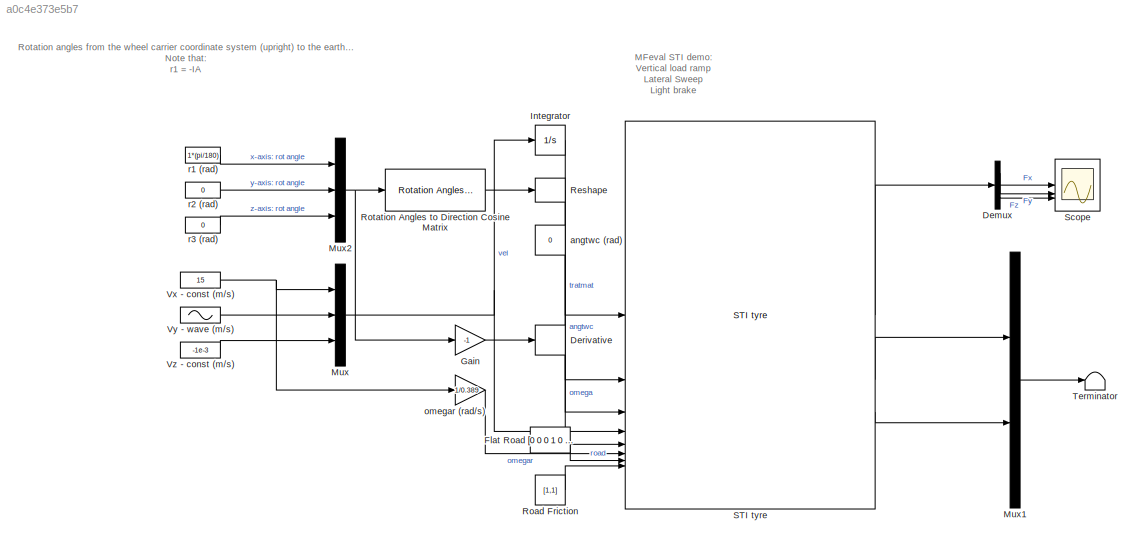
MODEL slx_a0c4e373e5b7
KIND model
CONFIG AbsTol = auto
CONFIG EnableMultiTasking = off
CONFIG FixedStep = auto
CONFIG MaxStep = auto
CONFIG MinStep = auto
CONFIG RelTol = 1e-3
CONFIG SampleTimeConstraint = Unconstrained
CONFIG SolverName = VariableStepAuto
CONFIG StartTime = 0.0
CONFIG StopTime = 10
BLOCK [Demux] Demux
  Outputs = 3
BLOCK [Derivative] Derivative
BLOCK [Constant] Flat Road
  Value = [0 0 0 1 0 0 0 1 0 0 0 1 0 0 0 0 0 0]
BLOCK [Gain] Gain
  Gain = -1
BLOCK [Integrator] Integrator
  InitialCondition = 0.38
BLOCK [Mux] Mux
  DisplayOption = bar
  Inputs = 3
BLOCK [Mux] Mux1
  DisplayOption = bar
  Inputs = 2
BLOCK [Mux] Mux2
  DisplayOption = bar
  Inputs = 3
BLOCK [Reshape] Reshape
BLOCK [Constant] Road Friction
  Value = [1,1]
BLOCK [Reference] Rotation Angles to Direction Cosine Matrix  REF=sharedtransform/Rotation Angles to
Direction Cosine Matrix
  AttributesFormatString = Rotation Order: %<rotationOrder>
  SourceBlock = sharedtransform/Rotation Angles to\nDirection Cosine Matrix
  SourceType = Ang2DCM
BLOCK [Reference] STI tyre  REF=mfeval_LIB/STI tyre
  Description = Magic Formula 6.1.2 tyre model including relaxation length and transient calculations
  SourceBlock = mfeval_LIB/STI tyre
  SourceProductName = MFeval Library
  SourceType = mfeval_STI_tyre
BLOCK [Scope] Scope
  ActiveDisplayYMaximum = 385.11185
  ActiveDisplayYMinimum = -4372.01549
  Floating = off
  GraphicalSettings = {"GraphicalSettings":{"LegacySettings":true,"Style":{"Style":{"AxesColor":"[0 0 0]","ChannelNames":["","",""],"ColorOrder":"[1 1 0.0666666666666667;0.0745098039215686 0.623529411764706 1;1 0.411764705882353 0.16078431372549;0.392156862745098 0.831372549019608 0.0745098039215686;0.717647058823529 0.274509803921569 1;0.0588235294117647 1 1;1 0.0745098039215686 0.650980392156863]","CurrentConfigurati...<+430ch>
  LayoutDimensionsString = [3 1]
  MultipleDisplayCache = [{"MaxYLimMag":4372.01549,"MaxYLimReal":385.11185,"MinYLimMag":0,"MinYLimReal":-4372.01549,"PlotAsMagnitudePhase":false,"ShowGrid":true,"ShowLegend":false,"Title":"%<SignalLabel>","YLabel":""},{"MaxYLimMag":10,"MaxYLimReal":1242.77087,"MinYLimMag":0,"MinYLimReal":-760.30879,"PlotAsMagnitudePhase":false,"ShowGrid":true,"ShowLegend":false,"Title":"%<SignalLabel>","YLabel":""},{"MaxYLimMag":10,"MaxYL...<+161ch>
  NumInputPorts = 3
  WasSavedAsWebScope = on
  WindowPosition = [894 454 560 420]
BLOCK [Terminator] Terminator
BLOCK [Constant] Vx - const (m//s)
  Value = 15
BLOCK [Sin] Vy - wave (m//s)
  Amplitude = 0.1
  SampleTime = 0
BLOCK [Constant] Vz - const (m//s)
  Value = -1e-3
BLOCK [Constant] angtwc (rad)
  Value = 0
BLOCK [Gain] omegar (rad//s)
  Gain = 1/0.389
BLOCK [Constant] r1 (rad)
  Value = 1*(pi/180)
BLOCK [Constant] r2 (rad)
  Value = 0
BLOCK [Constant] r3 (rad)
  Value = 0
ANNOTATION (root): MFeval STI demo : Vertical load ramp Lateral Sweep Light brake
ANNOTATION (root): Rotation angles from the wheel carrier coordinate system (upright) to the earth-fixed axis system (global axis system). Note that: r1 = -IA
LINE Demux:1 -> Scope:1
LINE Demux:2 -> Scope:2
LINE Demux:3 -> Scope:3
LINE Derivative:1 -> STI tyre:5
LINE Flat Road:1 -> STI tyre:7
LINE Gain:1 -> Derivative:1
LINE Integrator:1 -> STI tyre:1
LINE Mux1:1 -> Terminator:1
NET Mux2:1 -> Gain:1, Rotation Angles to Direction Cosine Matrix:1
NET Mux:1 -> Integrator:1, STI tyre:4
LINE Reshape:1 -> STI tyre:2
LINE Road Friction:1 -> STI tyre:8
LINE Rotation Angles to Direction Cosine Matrix:1 -> Reshape:1
LINE STI tyre:1 -> Demux:1
LINE STI tyre:2 -> Mux1:1
LINE STI tyre:3 -> Mux1:2
NET Vx - const (m//s):1 -> Mux:1, omegar (rad//s):1
LINE Vy - wave (m//s):1 -> Mux:2
LINE Vz - const (m//s):1 -> Mux:3
LINE angtwc (rad):1 -> STI tyre:3
LINE omegar (rad//s):1 -> STI tyre:6
LINE r1 (rad):1 -> Mux2:1
LINE r2 (rad):1 -> Mux2:2
LINE r3 (rad):1 -> Mux2:3
note: NET lines group one-source signal fan-out (src -> all destinations, sorted); 1:1 wires keep LINE
